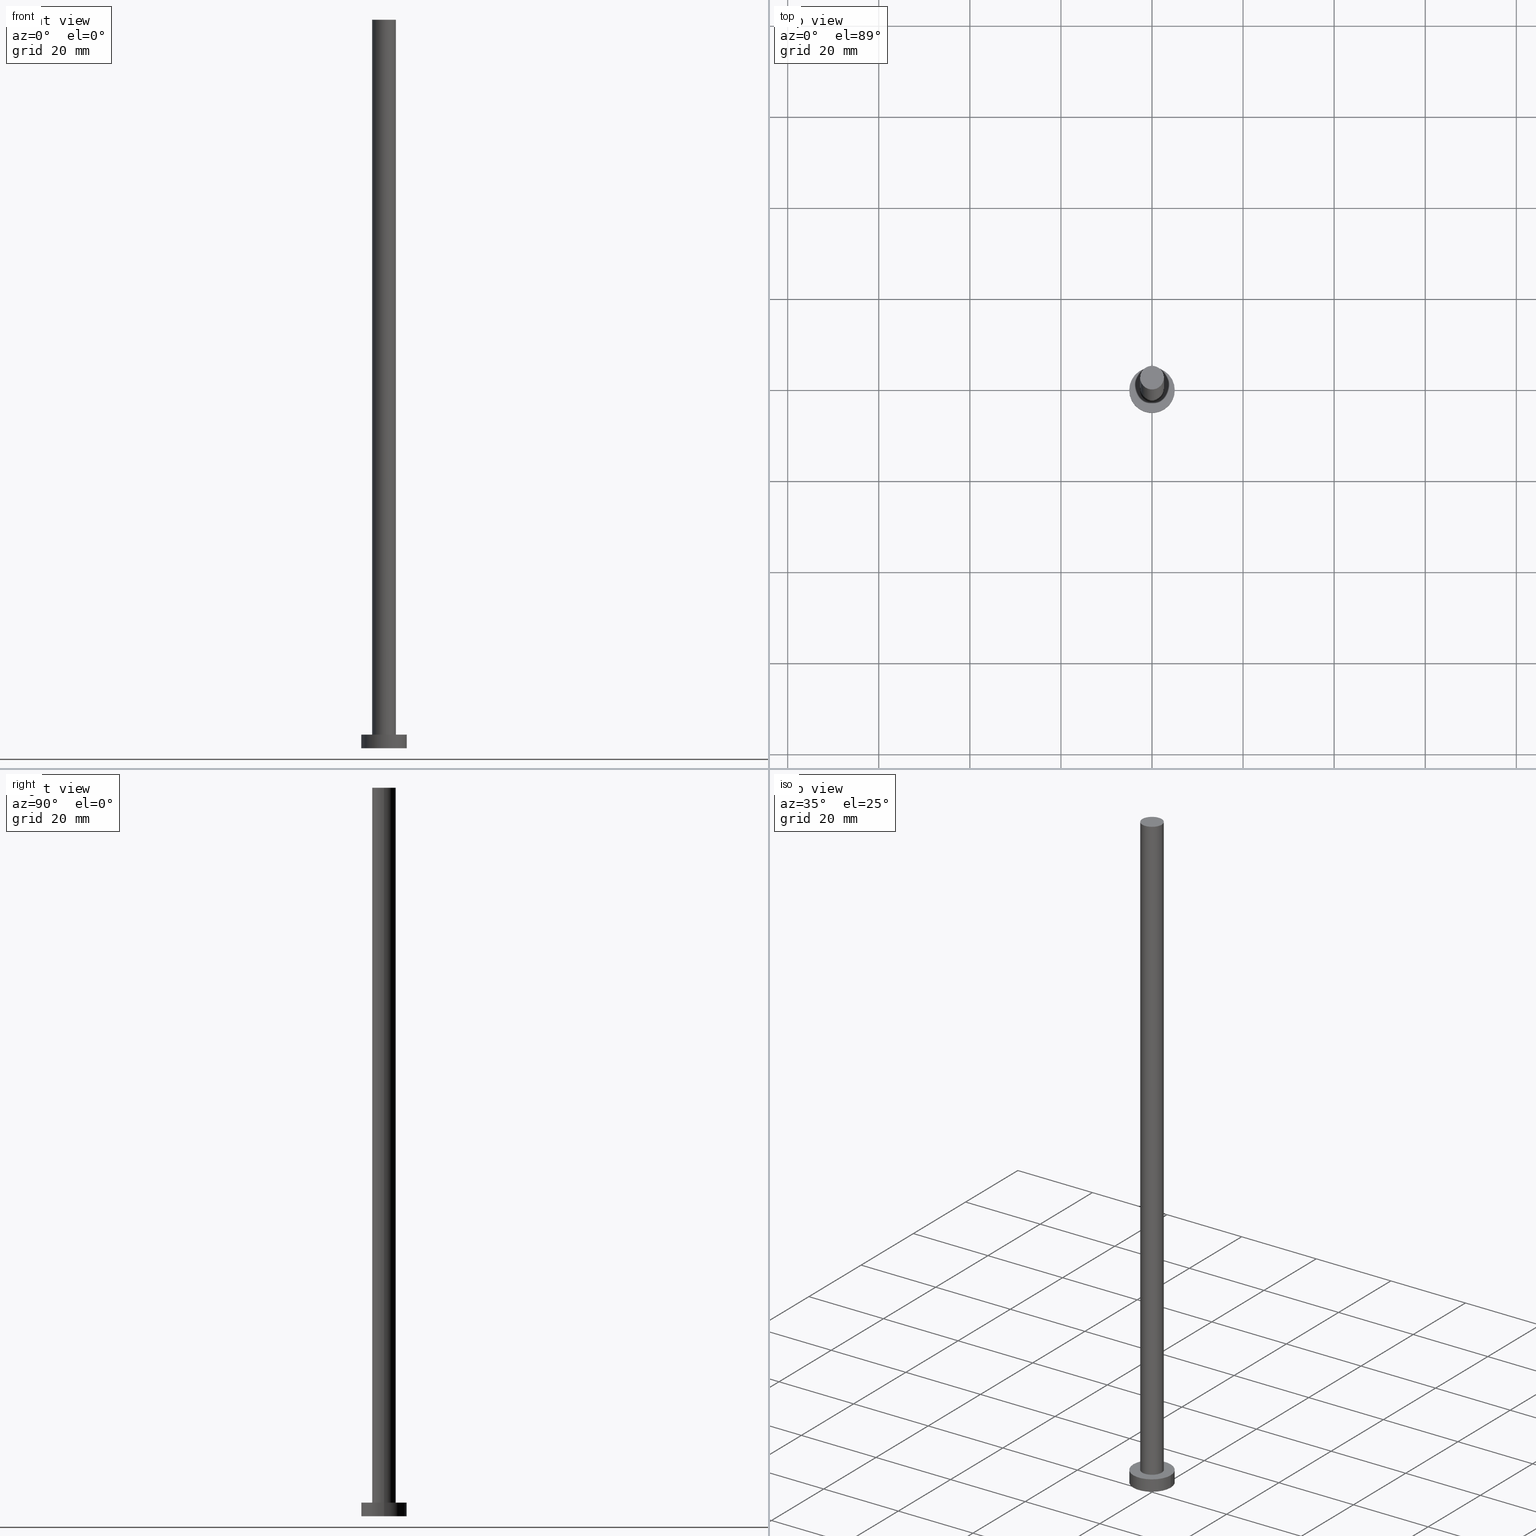
[diagram: canonical four-view strip — front | top / right | iso, engineering-drawing reading convention]
A machine part, canonical four-view strip (front | top / right | iso — engineering-drawing reading convention). The complete STEP part file that produces these views, byte-faithful:
ISO-10303-21;
HEADER;
FILE_DESCRIPTION (( 'STEP AP203' ),
    '1' );
FILE_NAME ('990c.STEP',
    '2023-02-13T13:24:47',
    ( '' ),
    ( '' ),
    'SwSTEP 2.0',
    'SolidWorks 2019',
    '' );
FILE_SCHEMA (( 'CONFIG_CONTROL_DESIGN' ));
ENDSEC;

DATA;
#1 = EDGE_CURVE ( 'NONE', #246, #190, #41, .T. ) ;
#2 = DATE_AND_TIME ( #22, #220 ) ;
#3 = VERTEX_POINT ( 'NONE', #167 ) ;
#4 = VERTEX_POINT ( 'NONE', #106 ) ;
#5 = DIRECTION ( 'NONE',  ( 0.000000000000000000, 0.000000000000000000, 1.000000000000000000 ) ) ;
#6 = EDGE_CURVE ( 'NONE', #66, #4, #124, .T. ) ;
#7 = ORIENTED_EDGE ( 'NONE', *, *, #155, .T. ) ;
#8 = APPLICATION_PROTOCOL_DEFINITION ( 'international standard', 'config_control_design', 1994, #222 ) ;
#9 = ORIENTED_EDGE ( 'NONE', *, *, #44, .T. ) ;
#10 = VECTOR ( 'NONE', #137, 1000.000000000000000 ) ;
#11 = APPLICATION_CONTEXT ( 'configuration controlled 3d designs of mechanical parts and assemblies' ) ;
#12 = CARTESIAN_POINT ( 'NONE',  ( -5.000000000000000000, 0.000000000000000000, 0.000000000000000000 ) ) ;
#13 = ADVANCED_FACE ( 'NONE', ( #150 ), #168, .T. ) ;
#14 = PRODUCT ( '990c', '990c', '', ( #181 ) ) ;
#15 = EDGE_LOOP ( 'NONE', ( #172, #38 ) ) ;
#16 = AXIS2_PLACEMENT_3D ( 'NONE', #210, #5, #24 ) ;
#17 = CARTESIAN_POINT ( 'NONE',  ( 0.000000000000000000, 0.000000000000000000, 160.0000000000000000 ) ) ;
#18 = CARTESIAN_POINT ( 'NONE',  ( 0.000000000000000000, 0.000000000000000000, 0.000000000000000000 ) ) ;
#19 = DIRECTION ( 'NONE',  ( 0.000000000000000000, 0.000000000000000000, 1.000000000000000000 ) ) ;
#20 = APPROVAL_DATE_TIME ( #128, #122 ) ;
#21 = AXIS2_PLACEMENT_3D ( 'NONE', #17, #250, #178 ) ;
#22 = CALENDAR_DATE ( 2023, 13, 2 ) ;
#23 = PLANE ( 'NONE',  #254 ) ;
#24 = DIRECTION ( 'NONE',  ( 1.000000000000000000, 0.000000000000000000, 0.000000000000000000 ) ) ;
#25 = DATE_AND_TIME ( #182, #225 ) ;
#26 = LINE ( 'NONE', #132, #65 ) ;
#27 = ORIENTED_EDGE ( 'NONE', *, *, #224, .T. ) ;
#28 = CC_DESIGN_DATE_AND_TIME_ASSIGNMENT ( #161, #87, ( #169 ) ) ;
#29 = DIRECTION ( 'NONE',  ( 1.000000000000000000, 0.000000000000000000, 0.000000000000000000 ) ) ;
#30 = CARTESIAN_POINT ( 'NONE',  ( 5.000000000000000000, 6.123233995736766282E-16, 0.000000000000000000 ) ) ;
#31 = EDGE_CURVE ( 'NONE', #3, #50, #104, .T. ) ;
#32 = DIRECTION ( 'NONE',  ( 0.000000000000000000, 0.000000000000000000, 1.000000000000000000 ) ) ;
#33 = CC_DESIGN_APPROVAL ( #113, ( #163 ) ) ;
#34 = CARTESIAN_POINT ( 'NONE',  ( 2.600000000000000089, 3.184081677783118191E-16, 160.0000000000000000 ) ) ;
#35 = APPROVAL_PERSON_ORGANIZATION ( #80, #113, #62 ) ;
#36 = DIRECTION ( 'NONE',  ( 1.000000000000000000, 0.000000000000000000, 0.000000000000000000 ) ) ;
#37 = PERSON_AND_ORGANIZATION_ROLE ( 'creator' ) ;
#38 = ORIENTED_EDGE ( 'NONE', *, *, #75, .F. ) ;
#39 = ADVANCED_FACE ( 'NONE', ( #245 ), #23, .T. ) ;
#40 = PERSON_AND_ORGANIZATION ( #197, #103 ) ;
#41 = CIRCLE ( 'NONE', #76, 2.600000000000000089 ) ;
#42 = AXIS2_PLACEMENT_3D ( 'NONE', #134, #249, #215 ) ;
#43 = AXIS2_PLACEMENT_3D ( 'NONE', #230, #84, #130 ) ;
#44 = EDGE_CURVE ( 'NONE', #4, #190, #26, .T. ) ;
#45 = CC_DESIGN_APPROVAL ( #122, ( #78 ) ) ;
#46 = CARTESIAN_POINT ( 'NONE',  ( -5.000000000000000000, 0.000000000000000000, 3.000000000000000000 ) ) ;
#47 = PERSON_AND_ORGANIZATION ( #197, #103 ) ;
#48 = ORIENTED_EDGE ( 'NONE', *, *, #155, .F. ) ;
#49 = EDGE_CURVE ( 'NONE', #50, #145, #226, .T. ) ;
#50 = VERTEX_POINT ( 'NONE', #12 ) ;
#51 = AXIS2_PLACEMENT_3D ( 'NONE', #189, #90, #110 ) ;
#52 = AXIS2_PLACEMENT_3D ( 'NONE', #95, #96, #157 ) ;
#53 = ORIENTED_EDGE ( 'NONE', *, *, #6, .F. ) ;
#54 = APPROVAL_PERSON_ORGANIZATION ( #40, #252, #201 ) ;
#55 = FACE_OUTER_BOUND ( 'NONE', #15, .T. ) ;
#56 = LINE ( 'NONE', #199, #10 ) ;
#57 = AXIS2_PLACEMENT_3D ( 'NONE', #180, #98, #79 ) ;
#58 = APPLICATION_PROTOCOL_DEFINITION ( 'international standard', 'config_control_design', 1994, #11 ) ;
#59 = AXIS2_PLACEMENT_3D ( 'NONE', #112, #19, #174 ) ;
#60 = LINE ( 'NONE', #34, #166 ) ;
#61 = CYLINDRICAL_SURFACE ( 'NONE', #52, 2.600000000000000089 ) ;
#62 = APPROVAL_ROLE ( '' ) ;
#63 = PERSON_AND_ORGANIZATION ( #197, #103 ) ;
#64 = DATE_TIME_ROLE ( 'classification_date' ) ;
#65 = VECTOR ( 'NONE', #71, 1000.000000000000000 ) ;
#66 = VERTEX_POINT ( 'NONE', #108 ) ;
#67 = PERSON_AND_ORGANIZATION_ROLE ( 'creator' ) ;
#68 = LOCAL_TIME ( 14, 24, 47.00000000000000000, #143 ) ;
#69 = DIRECTION ( 'NONE',  ( -0.000000000000000000, -0.000000000000000000, -1.000000000000000000 ) ) ;
#70 = CC_DESIGN_PERSON_AND_ORGANIZATION_ASSIGNMENT ( #116, #117, ( #163 ) ) ;
#71 = DIRECTION ( 'NONE',  ( -0.000000000000000000, -0.000000000000000000, -1.000000000000000000 ) ) ;
#72 = FACE_BOUND ( 'NONE', #118, .T. ) ;
#73 = ORIENTED_EDGE ( 'NONE', *, *, #200, .F. ) ;
#74 = DIRECTION ( 'NONE',  ( 1.000000000000000000, 0.000000000000000000, -0.000000000000000000 ) ) ;
#75 = EDGE_CURVE ( 'NONE', #145, #50, #159, .T. ) ;
#76 = AXIS2_PLACEMENT_3D ( 'NONE', #125, #208, #29 ) ;
#77 =( NAMED_UNIT ( * ) PLANE_ANGLE_UNIT ( ) SI_UNIT ( $, .RADIAN. ) );
#78 = SECURITY_CLASSIFICATION ( '', '', #229 ) ;
#79 = DIRECTION ( 'NONE',  ( -1.000000000000000000, 0.000000000000000000, 0.000000000000000000 ) ) ;
#80 = PERSON_AND_ORGANIZATION ( #197, #103 ) ;
#81 = EDGE_LOOP ( 'NONE', ( #53, #212, #243, #241 ) ) ;
#82 = ADVANCED_FACE ( 'NONE', ( #72, #193 ), #164, .T. ) ;
#83 = ORIENTED_EDGE ( 'NONE', *, *, #31, .T. ) ;
#84 = DIRECTION ( 'NONE',  ( 0.000000000000000000, 0.000000000000000000, 1.000000000000000000 ) ) ;
#85 = ORIENTED_EDGE ( 'NONE', *, *, #138, .F. ) ;
#86 = PRODUCT_RELATED_PRODUCT_CATEGORY ( 'detail', '', ( #14 ) ) ;
#87 = DATE_TIME_ROLE ( 'creation_date' ) ;
#88 = AXIS2_PLACEMENT_3D ( 'NONE', #133, #32, #217 ) ;
#89 = EDGE_LOOP ( 'NONE', ( #85, #151, #9, #7 ) ) ;
#90 = DIRECTION ( 'NONE',  ( 0.000000000000000000, 0.000000000000000000, 1.000000000000000000 ) ) ;
#91 = VERTEX_POINT ( 'NONE', #114 ) ;
#92 = ADVANCED_FACE ( 'NONE', ( #136 ), #235, .T. ) ;
#93 = FACE_OUTER_BOUND ( 'NONE', #232, .T. ) ;
#94 =( LENGTH_UNIT ( ) NAMED_UNIT ( * ) SI_UNIT ( .MILLI., .METRE. ) );
#95 = CARTESIAN_POINT ( 'NONE',  ( 0.000000000000000000, 0.000000000000000000, 160.0000000000000000 ) ) ;
#96 = DIRECTION ( 'NONE',  ( -0.000000000000000000, -0.000000000000000000, -1.000000000000000000 ) ) ;
#97 =( GEOMETRIC_REPRESENTATION_CONTEXT ( 3 ) GLOBAL_UNCERTAINTY_ASSIGNED_CONTEXT ( ( #213 ) ) GLOBAL_UNIT_ASSIGNED_CONTEXT ( ( #94, #77, #234 ) ) REPRESENTATION_CONTEXT ( 'NONE', 'WORKASPACE' ) );
#98 = DIRECTION ( 'NONE',  ( -0.000000000000000000, -0.000000000000000000, -1.000000000000000000 ) ) ;
#99 = PERSON_AND_ORGANIZATION_ROLE ( 'design_owner' ) ;
#100 = PERSON_AND_ORGANIZATION ( #197, #103 ) ;
#101 = CALENDAR_DATE ( 2023, 13, 2 ) ;
#102 = ORIENTED_EDGE ( 'NONE', *, *, #1, .F. ) ;
#103 = ORGANIZATION ( 'NEUR�EN�', 'NEUR�EN�', '' ) ;
#104 = LINE ( 'NONE', #46, #141 ) ;
#105 = ADVANCED_FACE ( 'NONE', ( #93 ), #156, .T. ) ;
#106 = CARTESIAN_POINT ( 'NONE',  ( -2.600000000000000089, 0.000000000000000000, 160.0000000000000000 ) ) ;
#107 = PERSON_AND_ORGANIZATION ( #197, #103 ) ;
#108 = CARTESIAN_POINT ( 'NONE',  ( 2.600000000000000089, 3.184081677783118191E-16, 160.0000000000000000 ) ) ;
#109 = ORIENTED_EDGE ( 'NONE', *, *, #31, .F. ) ;
#110 = DIRECTION ( 'NONE',  ( 1.000000000000000000, 0.000000000000000000, 0.000000000000000000 ) ) ;
#111 = CARTESIAN_POINT ( 'NONE',  ( -2.600000000000000089, 0.000000000000000000, 3.000000000000000000 ) ) ;
#112 = CARTESIAN_POINT ( 'NONE',  ( 0.000000000000000000, 0.000000000000000000, 3.000000000000000000 ) ) ;
#113 = APPROVAL ( #236, 'NEUR�EN�' ) ;
#114 = CARTESIAN_POINT ( 'NONE',  ( 5.000000000000000000, 6.123233995736766282E-16, 3.000000000000000000 ) ) ;
#115 = ADVANCED_BREP_SHAPE_REPRESENTATION ( '990c', ( #198, #255 ), #97 ) ;
#116 = PERSON_AND_ORGANIZATION ( #197, #103 ) ;
#117 = PERSON_AND_ORGANIZATION_ROLE ( 'design_supplier' ) ;
#118 = EDGE_LOOP ( 'NONE', ( #48, #102 ) ) ;
#119 = DATE_AND_TIME ( #101, #162 ) ;
#120 = ORIENTED_EDGE ( 'NONE', *, *, #191, .T. ) ;
#121 = AXIS2_PLACEMENT_3D ( 'NONE', #154, #177, #233 ) ;
#122 = APPROVAL ( #238, 'NEUR�EN�' ) ;
#123 = ORIENTED_EDGE ( 'NONE', *, *, #200, .T. ) ;
#124 = CIRCLE ( 'NONE', #51, 2.600000000000000089 ) ;
#125 = CARTESIAN_POINT ( 'NONE',  ( 0.000000000000000000, 0.000000000000000000, 3.000000000000000000 ) ) ;
#126 = CIRCLE ( 'NONE', #42, 5.000000000000000000 ) ;
#127 = DIRECTION ( 'NONE',  ( -0.000000000000000000, -0.000000000000000000, -1.000000000000000000 ) ) ;
#128 = DATE_AND_TIME ( #139, #68 ) ;
#129 = ORIENTED_EDGE ( 'NONE', *, *, #228, .T. ) ;
#130 = DIRECTION ( 'NONE',  ( 1.000000000000000000, 0.000000000000000000, 0.000000000000000000 ) ) ;
#131 = APPROVAL_PERSON_ORGANIZATION ( #47, #122, #148 ) ;
#132 = CARTESIAN_POINT ( 'NONE',  ( -2.600000000000000089, 0.000000000000000000, 160.0000000000000000 ) ) ;
#133 = CARTESIAN_POINT ( 'NONE',  ( 0.000000000000000000, 0.000000000000000000, 160.0000000000000000 ) ) ;
#134 = CARTESIAN_POINT ( 'NONE',  ( 0.000000000000000000, 0.000000000000000000, 3.000000000000000000 ) ) ;
#135 = CC_DESIGN_DATE_AND_TIME_ASSIGNMENT ( #25, #64, ( #78 ) ) ;
#136 = FACE_OUTER_BOUND ( 'NONE', #89, .T. ) ;
#137 = DIRECTION ( 'NONE',  ( -0.000000000000000000, -0.000000000000000000, -1.000000000000000000 ) ) ;
#138 = EDGE_CURVE ( 'NONE', #66, #246, #60, .T. ) ;
#139 = CALENDAR_DATE ( 2023, 13, 2 ) ;
#140 = COORDINATED_UNIVERSAL_TIME_OFFSET ( 1, 0, .AHEAD. ) ;
#141 = VECTOR ( 'NONE', #127, 1000.000000000000000 ) ;
#142 = CC_DESIGN_PERSON_AND_ORGANIZATION_ASSIGNMENT ( #100, #37, ( #169 ) ) ;
#143 = COORDINATED_UNIVERSAL_TIME_OFFSET ( 1, 0, .AHEAD. ) ;
#144 = AXIS2_PLACEMENT_3D ( 'NONE', #242, #251, #175 ) ;
#145 = VERTEX_POINT ( 'NONE', #30 ) ;
#146 = CC_DESIGN_PERSON_AND_ORGANIZATION_ASSIGNMENT ( #107, #67, ( #163 ) ) ;
#147 = AXIS2_PLACEMENT_3D ( 'NONE', #18, #247, #74 ) ;
#148 = APPROVAL_ROLE ( '' ) ;
#149 = EDGE_LOOP ( 'NONE', ( #129, #123 ) ) ;
#150 = FACE_OUTER_BOUND ( 'NONE', #153, .T. ) ;
#151 = ORIENTED_EDGE ( 'NONE', *, *, #191, .F. ) ;
#152 = LOCAL_TIME ( 14, 24, 47.00000000000000000, #140 ) ;
#153 = EDGE_LOOP ( 'NONE', ( #186, #205, #83, #170 ) ) ;
#154 = CARTESIAN_POINT ( 'NONE',  ( 0.000000000000000000, 0.000000000000000000, 3.000000000000000000 ) ) ;
#155 = EDGE_CURVE ( 'NONE', #190, #246, #183, .T. ) ;
#156 = CYLINDRICAL_SURFACE ( 'NONE', #57, 5.000000000000000000 ) ;
#157 = DIRECTION ( 'NONE',  ( -1.000000000000000000, 0.000000000000000000, 0.000000000000000000 ) ) ;
#158 = CARTESIAN_POINT ( 'NONE',  ( 0.000000000000000000, 0.000000000000000000, 0.000000000000000000 ) ) ;
#159 = CIRCLE ( 'NONE', #43, 5.000000000000000000 ) ;
#160 = APPROVAL_DATE_TIME ( #2, #113 ) ;
#161 = DATE_AND_TIME ( #253, #152 ) ;
#162 = LOCAL_TIME ( 14, 24, 47.00000000000000000, #185 ) ;
#163 = PRODUCT_DEFINITION_FORMATION_WITH_SPECIFIED_SOURCE ( 'LIBOVOLN�', '', #14, .NOT_KNOWN. ) ;
#164 = PLANE ( 'NONE',  #144 ) ;
#165 = APPROVAL_STATUS ( 'not_yet_approved' ) ;
#166 = VECTOR ( 'NONE', #195, 1000.000000000000000 ) ;
#167 = CARTESIAN_POINT ( 'NONE',  ( -5.000000000000000000, 0.000000000000000000, 3.000000000000000000 ) ) ;
#168 = CYLINDRICAL_SURFACE ( 'NONE', #171, 5.000000000000000000 ) ;
#169 = PRODUCT_DEFINITION ( 'NEZN�M�', '', #163, #173 ) ;
#170 = ORIENTED_EDGE ( 'NONE', *, *, #49, .T. ) ;
#171 = AXIS2_PLACEMENT_3D ( 'NONE', #207, #69, #244 ) ;
#172 = ORIENTED_EDGE ( 'NONE', *, *, #49, .F. ) ;
#173 = DESIGN_CONTEXT ( 'detailed design', #222, 'design' ) ;
#174 = DIRECTION ( 'NONE',  ( 1.000000000000000000, 0.000000000000000000, 0.000000000000000000 ) ) ;
#175 = DIRECTION ( 'NONE',  ( 1.000000000000000000, 0.000000000000000000, -0.000000000000000000 ) ) ;
#176 = PRODUCT_DEFINITION_SHAPE ( 'NONE', 'NONE',  #169 ) ;
#177 = DIRECTION ( 'NONE',  ( 0.000000000000000000, 0.000000000000000000, 1.000000000000000000 ) ) ;
#178 = DIRECTION ( 'NONE',  ( -1.000000000000000000, 0.000000000000000000, 0.000000000000000000 ) ) ;
#179 = ADVANCED_FACE ( 'NONE', ( #196 ), #61, .T. ) ;
#180 = CARTESIAN_POINT ( 'NONE',  ( 0.000000000000000000, 0.000000000000000000, 3.000000000000000000 ) ) ;
#181 = MECHANICAL_CONTEXT ( 'NONE', #11, 'mechanical' ) ;
#182 = CALENDAR_DATE ( 2023, 13, 2 ) ;
#183 = CIRCLE ( 'NONE', #59, 2.600000000000000089 ) ;
#184 = ADVANCED_FACE ( 'NONE', ( #55 ), #248, .F. ) ;
#185 = COORDINATED_UNIVERSAL_TIME_OFFSET ( 1, 0, .AHEAD. ) ;
#186 = ORIENTED_EDGE ( 'NONE', *, *, #224, .F. ) ;
#187 = CIRCLE ( 'NONE', #88, 2.600000000000000089 ) ;
#188 = DIRECTION ( 'NONE',  ( 1.000000000000000000, 0.000000000000000000, -0.000000000000000000 ) ) ;
#189 = CARTESIAN_POINT ( 'NONE',  ( 0.000000000000000000, 0.000000000000000000, 160.0000000000000000 ) ) ;
#190 = VERTEX_POINT ( 'NONE', #111 ) ;
#191 = EDGE_CURVE ( 'NONE', #4, #66, #187, .T. ) ;
#192 = DIRECTION ( 'NONE',  ( 0.000000000000000000, 0.000000000000000000, 1.000000000000000000 ) ) ;
#193 = FACE_OUTER_BOUND ( 'NONE', #149, .T. ) ;
#194 = CLOSED_SHELL ( 'NONE', ( #179, #105, #13, #82, #184, #92, #39 ) ) ;
#195 = DIRECTION ( 'NONE',  ( -0.000000000000000000, -0.000000000000000000, -1.000000000000000000 ) ) ;
#196 = FACE_OUTER_BOUND ( 'NONE', #81, .T. ) ;
#197 = PERSON ( 'NEUR�EN�', 'NEUR�EN�', 'NEUR�EN�', ('NEUR�EN�'), ('NEUR�EN�'), ('NEUR�EN�') ) ;
#198 = MANIFOLD_SOLID_BREP ( 'P�idat vysunut�m3', #194 ) ;
#199 = CARTESIAN_POINT ( 'NONE',  ( 5.000000000000000000, 6.123233995736766282E-16, 3.000000000000000000 ) ) ;
#200 = EDGE_CURVE ( 'NONE', #91, #3, #237, .T. ) ;
#201 = APPROVAL_ROLE ( '' ) ;
#202 = PERSON_AND_ORGANIZATION ( #197, #103 ) ;
#203 = ORIENTED_EDGE ( 'NONE', *, *, #6, .T. ) ;
#204 = COORDINATED_UNIVERSAL_TIME_OFFSET ( 1, 0, .AHEAD. ) ;
#205 = ORIENTED_EDGE ( 'NONE', *, *, #228, .F. ) ;
#206 = CC_DESIGN_PERSON_AND_ORGANIZATION_ASSIGNMENT ( #63, #239, ( #78 ) ) ;
#207 = CARTESIAN_POINT ( 'NONE',  ( 0.000000000000000000, 0.000000000000000000, 3.000000000000000000 ) ) ;
#208 = DIRECTION ( 'NONE',  ( 0.000000000000000000, 0.000000000000000000, 1.000000000000000000 ) ) ;
#209 = SHAPE_DEFINITION_REPRESENTATION ( #176, #115 ) ;
#210 = CARTESIAN_POINT ( 'NONE',  ( 0.000000000000000000, 0.000000000000000000, 0.000000000000000000 ) ) ;
#211 = CARTESIAN_POINT ( 'NONE',  ( 0.000000000000000000, 0.000000000000000000, 160.0000000000000000 ) ) ;
#212 = ORIENTED_EDGE ( 'NONE', *, *, #138, .T. ) ;
#213 = UNCERTAINTY_MEASURE_WITH_UNIT (LENGTH_MEASURE( 1.000000000000000082E-05 ), #94, 'distance_accuracy_value', 'NONE');
#214 = DIRECTION ( 'NONE',  ( 0.000000000000000000, 0.000000000000000000, 1.000000000000000000 ) ) ;
#215 = DIRECTION ( 'NONE',  ( 1.000000000000000000, 0.000000000000000000, 0.000000000000000000 ) ) ;
#216 = CC_DESIGN_SECURITY_CLASSIFICATION ( #78, ( #163 ) ) ;
#217 = DIRECTION ( 'NONE',  ( 1.000000000000000000, 0.000000000000000000, 0.000000000000000000 ) ) ;
#218 = CC_DESIGN_PERSON_AND_ORGANIZATION_ASSIGNMENT ( #202, #99, ( #14 ) ) ;
#219 = CARTESIAN_POINT ( 'NONE',  ( 2.600000000000000089, 3.184081677783118191E-16, 3.000000000000000000 ) ) ;
#220 = LOCAL_TIME ( 14, 24, 47.00000000000000000, #221 ) ;
#221 = COORDINATED_UNIVERSAL_TIME_OFFSET ( 1, 0, .AHEAD. ) ;
#222 = APPLICATION_CONTEXT ( 'configuration controlled 3d designs of mechanical parts and assemblies' ) ;
#223 = APPROVAL_DATE_TIME ( #119, #252 ) ;
#224 = EDGE_CURVE ( 'NONE', #91, #145, #56, .T. ) ;
#225 = LOCAL_TIME ( 14, 24, 47.00000000000000000, #204 ) ;
#226 = CIRCLE ( 'NONE', #16, 5.000000000000000000 ) ;
#227 = ORIENTED_EDGE ( 'NONE', *, *, #75, .T. ) ;
#228 = EDGE_CURVE ( 'NONE', #3, #91, #126, .T. ) ;
#229 = SECURITY_CLASSIFICATION_LEVEL ( 'unclassified' ) ;
#230 = CARTESIAN_POINT ( 'NONE',  ( 0.000000000000000000, 0.000000000000000000, 0.000000000000000000 ) ) ;
#231 = EDGE_LOOP ( 'NONE', ( #120, #203 ) ) ;
#232 = EDGE_LOOP ( 'NONE', ( #73, #27, #227, #109 ) ) ;
#233 = DIRECTION ( 'NONE',  ( 1.000000000000000000, 0.000000000000000000, 0.000000000000000000 ) ) ;
#234 =( NAMED_UNIT ( * ) SI_UNIT ( $, .STERADIAN. ) SOLID_ANGLE_UNIT ( ) );
#235 = CYLINDRICAL_SURFACE ( 'NONE', #21, 2.600000000000000089 ) ;
#236 = APPROVAL_STATUS ( 'not_yet_approved' ) ;
#237 = CIRCLE ( 'NONE', #121, 5.000000000000000000 ) ;
#238 = APPROVAL_STATUS ( 'not_yet_approved' ) ;
#239 = PERSON_AND_ORGANIZATION_ROLE ( 'classification_officer' ) ;
#240 = CC_DESIGN_APPROVAL ( #252, ( #169 ) ) ;
#241 = ORIENTED_EDGE ( 'NONE', *, *, #44, .F. ) ;
#242 = CARTESIAN_POINT ( 'NONE',  ( 0.000000000000000000, 0.000000000000000000, 3.000000000000000000 ) ) ;
#243 = ORIENTED_EDGE ( 'NONE', *, *, #1, .T. ) ;
#244 = DIRECTION ( 'NONE',  ( -1.000000000000000000, 0.000000000000000000, 0.000000000000000000 ) ) ;
#245 = FACE_OUTER_BOUND ( 'NONE', #231, .T. ) ;
#246 = VERTEX_POINT ( 'NONE', #219 ) ;
#247 = DIRECTION ( 'NONE',  ( 0.000000000000000000, 0.000000000000000000, 1.000000000000000000 ) ) ;
#248 = PLANE ( 'NONE',  #147 ) ;
#249 = DIRECTION ( 'NONE',  ( 0.000000000000000000, 0.000000000000000000, 1.000000000000000000 ) ) ;
#250 = DIRECTION ( 'NONE',  ( -0.000000000000000000, -0.000000000000000000, -1.000000000000000000 ) ) ;
#251 = DIRECTION ( 'NONE',  ( 0.000000000000000000, 0.000000000000000000, 1.000000000000000000 ) ) ;
#252 = APPROVAL ( #165, 'NEUR�EN�' ) ;
#253 = CALENDAR_DATE ( 2023, 13, 2 ) ;
#254 = AXIS2_PLACEMENT_3D ( 'NONE', #211, #192, #188 ) ;
#255 = AXIS2_PLACEMENT_3D ( 'NONE', #158, #214, #36 ) ;
ENDSEC;
END-ISO-10303-21;
